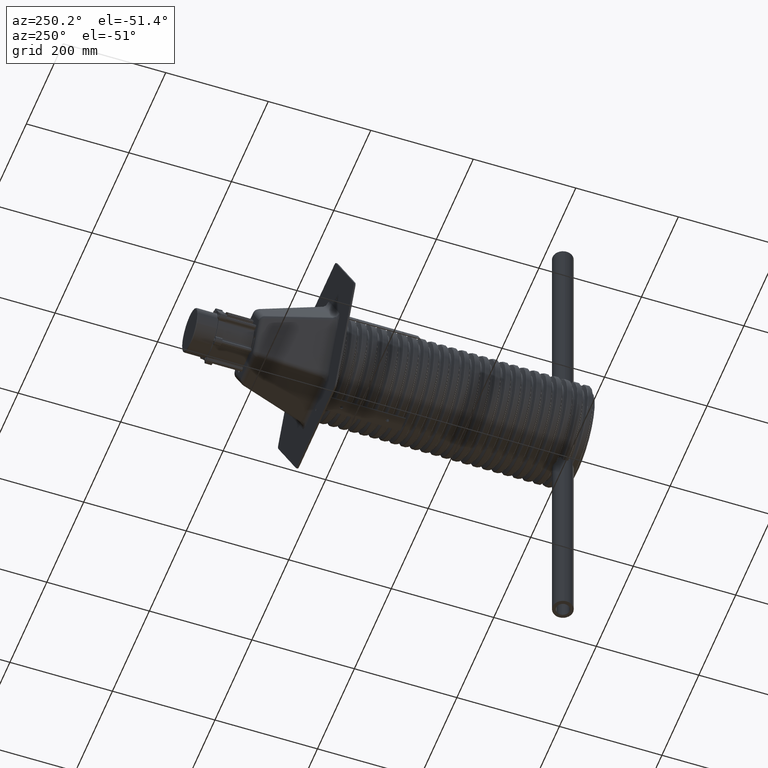
[diagram: clean part render]
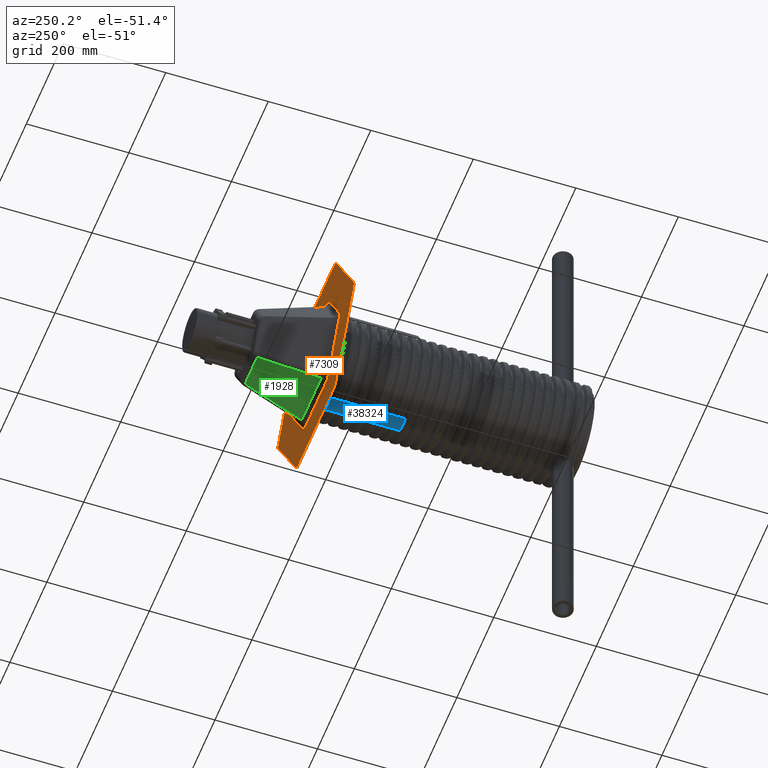
[diagram: same view with three faces highlighted in distinct colors, each labeled with its STEP entity id]
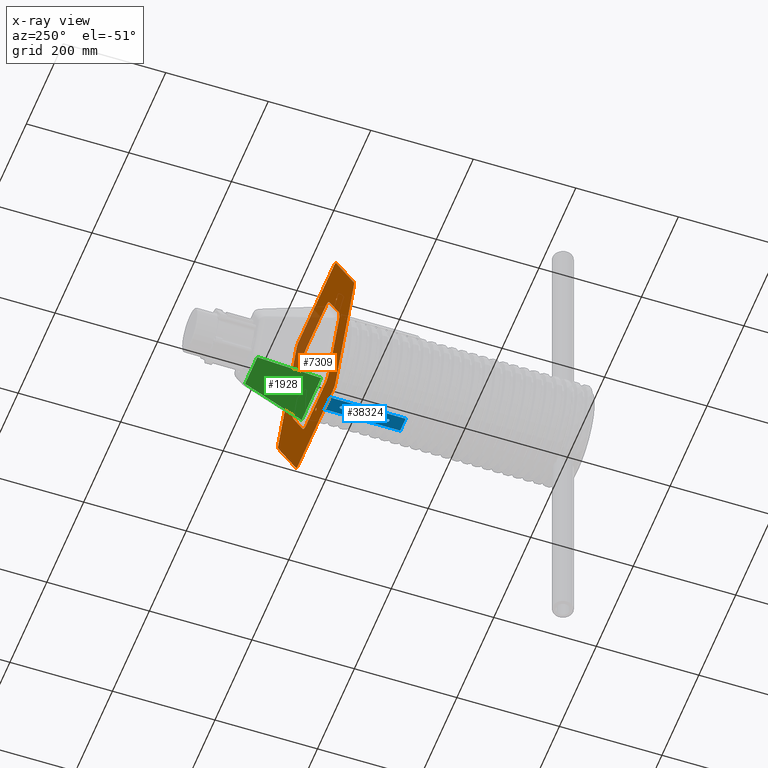
[diagram: x-ray of the same camera — body ghosted, the three highlighted faces saturated]
A machine part, auxiliary view with three faces highlighted in distinct colors.
The next image is the same camera in x-ray (body ghosted, the three faces saturated) — at least one of them is partly hidden behind the body in this view.
Their STEP definitions:

[orange] entity #7309 — the highlighted planar face has unit normal (-0, 1, 0).
#168 = FACE_BOUND ( 'NONE', #15408, .T. ) ;
#639 = EDGE_CURVE ( 'NONE', #44845, #1185, #3897, .T. ) ;
#665 = EDGE_CURVE ( 'NONE', #15430, #28852, #25187, .T. ) ;
#675 = CARTESIAN_POINT ( 'NONE',  ( -126.0606159927933600, -0.9905632959438801500, 3.000000000000000000 ) ) ;
#728 = CARTESIAN_POINT ( 'NONE',  ( 61.19974159824982300, 111.8859771665176800, 3.000000000000000000 ) ) ;
#1010 = CARTESIAN_POINT ( 'NONE',  ( -9.330518732437003100, 124.8735107438205500, 3.000000000000000000 ) ) ;
#1066 = DIRECTION ( 'NONE',  ( 0.8660254037844388200, -0.4999999999999996700, 0.0000000000000000000 ) ) ;
#1185 = VERTEX_POINT ( 'NONE', #11800 ) ;
#1237 = EDGE_CURVE ( 'NONE', #40690, #44837, #24024, .T. ) ;
#1313 = CARTESIAN_POINT ( 'NONE',  ( 103.4783731976789600, 70.51722162468746500, 3.000000000000000000 ) ) ;
#1322 = ORIENTED_EDGE ( 'NONE', *, *, #10440, .T. ) ;
#1336 =( BOUNDED_CURVE ( )  B_SPLINE_CURVE ( 3, ( #44526, #12512, #9154, #34119 ),
 .UNSPECIFIED., .F., .F. ) 
 B_SPLINE_CURVE_WITH_KNOTS ( ( 4, 4 ),
 ( 2.101014484786074800E-031, 0.5014484800342340300 ),
 .UNSPECIFIED. ) 
 CURVE ( )  GEOMETRIC_REPRESENTATION_ITEM ( )  RATIONAL_B_SPLINE_CURVE ( ( 1.000000000000000000, 0.9791553251799449700, 0.9791553251799449700, 1.000000000000000000 ) ) 
 REPRESENTATION_ITEM ( '' )  );
#1345 = CARTESIAN_POINT ( 'NONE',  ( 64.49258023428306800, -110.8974878807649700, 3.000000000000000000 ) ) ;
#1349 = VERTEX_POINT ( 'NONE', #25189 ) ;
#1583 = AXIS2_PLACEMENT_3D ( 'NONE', #35752, #35652, #35612 ) ;
#1652 = CARTESIAN_POINT ( 'NONE',  ( -105.4923940547534800, 69.35442614070194600, 2.999999999999999600 ) ) ;
#1684 = CARTESIAN_POINT ( 'NONE',  ( -109.9916431644735400, -63.50370478961814100, 2.999999999999999100 ) ) ;
#1730 = CARTESIAN_POINT ( 'NONE',  ( -108.1334689171749100, -66.72215699525544600, 2.999999999999999100 ) ) ;
#1785 = CARTESIAN_POINT ( 'NONE',  ( -105.4923940547534200, -69.35442614070200300, 2.999999999999999100 ) ) ;
#1791 = EDGE_LOOP ( 'NONE', ( #6440, #25975 ) ) ;
#1885 = DIRECTION ( 'NONE',  ( 1.000000000000000000, 0.0000000000000000000, -0.0000000000000000000 ) ) ;
#1982 = CARTESIAN_POINT ( 'NONE',  ( 102.2335756172567200, 71.23590584283083200, 3.000000000000000000 ) ) ;
#1996 = PLANE ( 'NONE',  #37613 ) ;
#2188 = VERTEX_POINT ( 'NONE', #26947 ) ;
#2196 = CARTESIAN_POINT ( 'NONE',  ( 0.0000000000000000000, 0.0000000000000000000, 3.000000000000000000 ) ) ;
#2245 = CARTESIAN_POINT ( 'NONE',  ( -102.2335756172568000, -71.23590584283076100, 3.000000000000000000 ) ) ;
#2651 = VERTEX_POINT ( 'NONE', #30161 ) ;
#2677 = DIRECTION ( 'NONE',  ( 0.0000000000000000000, 0.0000000000000000000, 1.000000000000000000 ) ) ;
#2829 = DIRECTION ( 'NONE',  ( 1.000000000000000000, 0.0000000000000000000, 0.0000000000000000000 ) ) ;
#2905 = CARTESIAN_POINT ( 'NONE',  ( 174.0000000000000600, 107.3871500692703600, 3.000000000000000000 ) ) ;
#2992 = DIRECTION ( 'NONE',  ( 0.0000000000000000000, 0.0000000000000000000, 1.000000000000000000 ) ) ;
#3089 = VERTEX_POINT ( 'NONE', #38229 ) ;
#3156 = CARTESIAN_POINT ( 'NONE',  ( -168.0000000000000000, -96.99484522385716900, 3.000000000000000000 ) ) ;
#3241 = ORIENTED_EDGE ( 'NONE', *, *, #3611, .T. ) ;
#3496 = CARTESIAN_POINT ( 'NONE',  ( 180.0000000000000600, -96.99484522385709800, 3.000000000000000000 ) ) ;
#3586 = EDGE_LOOP ( 'NONE', ( #32713, #16912, #9656, #4623, #7550, #3241, #6414, #32980, #35703, #38567, #25666, #45500 ) ) ;
#3611 = EDGE_CURVE ( 'NONE', #12273, #45952, #13545, .T. ) ;
#3803 = VECTOR ( 'NONE', #39108, 1000.000000000000000 ) ;
#3852 = VECTOR ( 'NONE', #44434, 1000.000000000000000 ) ;
#3897 =( BOUNDED_CURVE ( )  B_SPLINE_CURVE ( 3, ( #2245, #1785, #1730, #1684 ),
 .UNSPECIFIED., .F., .T. ) 
 B_SPLINE_CURVE_WITH_KNOTS ( ( 4, 4 ),
 ( 5.781736827145351800, 6.283185307179586200 ),
 .UNSPECIFIED. ) 
 CURVE ( )  GEOMETRIC_REPRESENTATION_ITEM ( )  RATIONAL_B_SPLINE_CURVE ( ( 1.000000000000000000, 0.9791553251799449700, 0.9791553251799449700, 1.000000000000000000 ) ) 
 REPRESENTATION_ITEM ( '' )  );
#3914 = CARTESIAN_POINT ( 'NONE',  ( 112.8088919301159900, 52.91892068284668200, 3.000000000000000000 ) ) ;
#3943 =( BOUNDED_CURVE ( )  B_SPLINE_CURVE ( 3, ( #14396, #14241, #28619, #31295 ),
 .UNSPECIFIED., .F., .T. ) 
 B_SPLINE_CURVE_WITH_KNOTS ( ( 4, 4 ),
 ( 5.781736827145351800, 6.283185307179586200 ),
 .UNSPECIFIED. ) 
 CURVE ( )  GEOMETRIC_REPRESENTATION_ITEM ( )  RATIONAL_B_SPLINE_CURVE ( ( 1.000000000000000000, 0.9791553251799449700, 0.9791553251799449700, 1.000000000000000000 ) ) 
 REPRESENTATION_ITEM ( '' )  );
#4072 = EDGE_CURVE ( 'NONE', #26807, #1349, #13502, .T. ) ;
#4121 = CARTESIAN_POINT ( 'NONE',  ( 10.57531631285921100, -124.1548265256771900, 3.000000000000000000 ) ) ;
#4408 = DIRECTION ( 'NONE',  ( 0.0000000000000000000, 0.0000000000000000000, 1.000000000000000000 ) ) ;
#4544 = EDGE_CURVE ( 'NONE', #13588, #8807, #42905, .T. ) ;
#4566 = EDGE_CURVE ( 'NONE', #19211, #44845, #20758, .T. ) ;
#4623 = ORIENTED_EDGE ( 'NONE', *, *, #1237, .T. ) ;
#4800 = CARTESIAN_POINT ( 'NONE',  ( 7.316497875362693500, 126.0363062278059500, 2.999999999999999600 ) ) ;
#4973 = DIRECTION ( 'NONE',  ( 1.000000000000000000, 0.0000000000000000000, 0.0000000000000000000 ) ) ;
#5375 = DIRECTION ( 'NONE',  ( 1.000000000000000000, 0.0000000000000000000, 0.0000000000000000000 ) ) ;
#5422 = DIRECTION ( 'NONE',  ( 0.0000000000000000000, 0.0000000000000000000, 1.000000000000000000 ) ) ;
#5456 = CARTESIAN_POINT ( 'NONE',  ( -128.5606159927932900, -0.9905632959438803700, 3.000000000000000000 ) ) ;
#5516 = CARTESIAN_POINT ( 'NONE',  ( -10.57531631285927000, -124.1548265256772100, 3.000000000000000000 ) ) ;
#5766 = VERTEX_POINT ( 'NONE', #35913 ) ;
#5840 = CARTESIAN_POINT ( 'NONE',  ( 109.9916431644734000, 63.50370478961828300, 2.999999999999999100 ) ) ;
#6414 = ORIENTED_EDGE ( 'NONE', *, *, #42125, .T. ) ;
#6440 = ORIENTED_EDGE ( 'NONE', *, *, #19188, .F. ) ;
#6960 = CARTESIAN_POINT ( 'NONE',  ( 180.0000000000000600, 103.9230484541326100, 3.000000000000000000 ) ) ;
#7309 = ADVANCED_FACE ( 'NONE', ( #45508, #26706, #36059, #168, #17204 ), #1996, .T. ) ;
#7386 = VERTEX_POINT ( 'NONE', #728 ) ;
#7390 = VERTEX_POINT ( 'NONE', #25981 ) ;
#7550 = ORIENTED_EDGE ( 'NONE', *, *, #41335, .T. ) ;
#7802 = CARTESIAN_POINT ( 'NONE',  ( 3.716348494597223600, -127.0074095792362000, 2.999999999999999600 ) ) ;
#7885 = CARTESIAN_POINT ( 'NONE',  ( -102.2335756172568000, -71.23590584283076100, 3.000000000000000000 ) ) ;
#8264 = VERTEX_POINT ( 'NONE', #17201 ) ;
#8807 = VERTEX_POINT ( 'NONE', #34700 ) ;
#9011 = EDGE_CURVE ( 'NONE', #1185, #36624, #41513, .T. ) ;
#9154 = CARTESIAN_POINT ( 'NONE',  ( -7.316497875362702400, -126.0363062278059500, 2.999999999999999100 ) ) ;
#9631 = ORIENTED_EDGE ( 'NONE', *, *, #12508, .T. ) ;
#9656 = ORIENTED_EDGE ( 'NONE', *, *, #31896, .T. ) ;
#10174 = CIRCLE ( 'NONE', #45628, 12.00000000000000000 ) ;
#10273 = ORIENTED_EDGE ( 'NONE', *, *, #26763, .F. ) ;
#10286 = VERTEX_POINT ( 'NONE', #3496 ) ;
#10296 = CARTESIAN_POINT ( 'NONE',  ( -131.0606159927932000, -0.9905632959438803700, 3.000000000000000000 ) ) ;
#10437 = EDGE_LOOP ( 'NONE', ( #11495, #45925 ) ) ;
#10440 = EDGE_CURVE ( 'NONE', #7390, #15430, #36661, .T. ) ;
#10505 = AXIS2_PLACEMENT_3D ( 'NONE', #1345, #26569, #4973 ) ;
#10557 = ORIENTED_EDGE ( 'NONE', *, *, #30548, .T. ) ;
#10652 = CARTESIAN_POINT ( 'NONE',  ( 61.99258023428314600, -110.8974878807649700, 3.000000000000000000 ) ) ;
#10692 = CARTESIAN_POINT ( 'NONE',  ( -112.8088919301161000, -52.91892068284656900, 3.000000000000000000 ) ) ;
#10729 = CARTESIAN_POINT ( 'NONE',  ( 102.2335756172567200, 71.23590584283083200, 3.000000000000000000 ) ) ;
#11495 = ORIENTED_EDGE ( 'NONE', *, *, #35711, .F. ) ;
#11541 = VERTEX_POINT ( 'NONE', #37102 ) ;
#11579 = CARTESIAN_POINT ( 'NONE',  ( 66.99258023428301100, -110.8974878807649700, 3.000000000000000000 ) ) ;
#11800 = CARTESIAN_POINT ( 'NONE',  ( -109.9916431644735400, -63.50370478961814100, 2.999999999999999100 ) ) ;
#11886 = EDGE_CURVE ( 'NONE', #10286, #40673, #36583, .T. ) ;
#11972 = AXIS2_PLACEMENT_3D ( 'NONE', #43404, #43243, #42937 ) ;
#12008 = DIRECTION ( 'NONE',  ( 0.8660254037844388200, 0.4999999999999997200, -0.0000000000000000000 ) ) ;
#12095 = CARTESIAN_POINT ( 'NONE',  ( -6.000000000000116400, -204.3819952931275200, 3.000000000000000000 ) ) ;
#12263 = VERTEX_POINT ( 'NONE', #18790 ) ;
#12273 = VERTEX_POINT ( 'NONE', #18695 ) ;
#12478 = CARTESIAN_POINT ( 'NONE',  ( -109.9916431644735900, 63.50370478961811200, 2.999999999999998200 ) ) ;
#12508 = EDGE_CURVE ( 'NONE', #8807, #2651, #32110, .T. ) ;
#12512 = CARTESIAN_POINT ( 'NONE',  ( -3.716348494597271100, -127.0074095792362000, 2.999999999999999100 ) ) ;
#12523 = VERTEX_POINT ( 'NONE', #12095 ) ;
#12535 = CIRCLE ( 'NONE', #27570, 12.00000000000000000 ) ;
#12628 = DIRECTION ( 'NONE',  ( 9.472722593022467100E-016, -1.000000000000000000, 0.0000000000000000000 ) ) ;
#12659 = CARTESIAN_POINT ( 'NONE',  ( 109.9916431644734900, -63.50370478961816900, 2.999999999999997300 ) ) ;
#13239 = CIRCLE ( 'NONE', #24671, 2.499999999999932900 ) ;
#13313 = ORIENTED_EDGE ( 'NONE', *, *, #39031, .T. ) ;
#13328 = LINE ( 'NONE', #15505, #22888 ) ;
#13502 = LINE ( 'NONE', #39286, #3803 ) ;
#13545 = CIRCLE ( 'NONE', #22438, 12.00000000000001100 ) ;
#13588 = VERTEX_POINT ( 'NONE', #14398 ) ;
#13747 = DIRECTION ( 'NONE',  ( -0.8660254037844387100, -0.4999999999999998900, 0.0000000000000000000 ) ) ;
#13766 = VERTEX_POINT ( 'NONE', #675 ) ;
#13905 =( BOUNDED_CURVE ( )  B_SPLINE_CURVE ( 3, ( #25923, #19971, #19507, #19351 ),
 .UNSPECIFIED., .F., .T. ) 
 B_SPLINE_CURVE_WITH_KNOTS ( ( 4, 4 ),
 ( 5.781736827145352600, 6.283185307179586200 ),
 .UNSPECIFIED. ) 
 CURVE ( )  GEOMETRIC_REPRESENTATION_ITEM ( )  RATIONAL_B_SPLINE_CURVE ( ( 1.000000000000000000, 0.9791553251799449700, 0.9791553251799449700, 1.000000000000000000 ) ) 
 REPRESENTATION_ITEM ( '' )  );
#13968 = CARTESIAN_POINT ( 'NONE',  ( 9.330518732436996000, -124.8735107438205600, 3.000000000000000000 ) ) ;
#14175 =( BOUNDED_CURVE ( )  B_SPLINE_CURVE ( 3, ( #4121, #25750, #7802, #32809 ),
 .UNSPECIFIED., .F., .F. ) 
 B_SPLINE_CURVE_WITH_KNOTS ( ( 4, 4 ),
 ( 5.781736827145353500, 6.283185307179586200 ),
 .UNSPECIFIED. ) 
 CURVE ( )  GEOMETRIC_REPRESENTATION_ITEM ( )  RATIONAL_B_SPLINE_CURVE ( ( 1.000000000000000000, 0.9791553251799451900, 0.9791553251799451900, 1.000000000000000000 ) ) 
 REPRESENTATION_ITEM ( '' )  );
#14241 = CARTESIAN_POINT ( 'NONE',  ( -7.316497875362673000, 126.0363062278059500, 2.999999999999999100 ) ) ;
#14313 = DIRECTION ( 'NONE',  ( -0.8660254037844386000, 0.5000000000000000000, 0.0000000000000000000 ) ) ;
#14396 = CARTESIAN_POINT ( 'NONE',  ( -10.57531631285924200, 124.1548265256771700, 3.000000000000000000 ) ) ;
#14398 = CARTESIAN_POINT ( 'NONE',  ( 109.9916431644734900, -63.50370478961816900, 2.999999999999997300 ) ) ;
#14402 = CARTESIAN_POINT ( 'NONE',  ( 109.9916431644734000, 63.50370478961828300, 2.999999999999999100 ) ) ;
#14422 = EDGE_CURVE ( 'NONE', #13766, #19411, #22626, .T. ) ;
#15078 = CARTESIAN_POINT ( 'NONE',  ( -180.0000000000000300, 96.99484522385709800, 3.000000000000000000 ) ) ;
#15132 = CARTESIAN_POINT ( 'NONE',  ( 168.0000000000000300, -96.99484522385709800, 3.000000000000000000 ) ) ;
#15246 = VERTEX_POINT ( 'NONE', #2905 ) ;
#15408 = EDGE_LOOP ( 'NONE', ( #39184, #29344, #34462, #18356, #10557, #17272, #9631, #28820, #16350, #41723, #35768, #35057, #22610, #39628, #23701, #13313, #29495, #1322 ) ) ;
#15430 = VERTEX_POINT ( 'NONE', #41701 ) ;
#15505 = CARTESIAN_POINT ( 'NONE',  ( -180.0000000000000300, -103.9230484541326800, 3.000000000000000000 ) ) ;
#15596 = EDGE_CURVE ( 'NONE', #36624, #18846, #32465, .T. ) ;
#15623 = VERTEX_POINT ( 'NONE', #44071 ) ;
#15962 = EDGE_CURVE ( 'NONE', #40673, #15246, #19766, .T. ) ;
#15975 = EDGE_CURVE ( 'NONE', #11541, #5766, #10174, .T. ) ;
#16117 = CARTESIAN_POINT ( 'NONE',  ( 10.57531631285926100, 124.1548265256772100, 3.000000000000000000 ) ) ;
#16118 = CARTESIAN_POINT ( 'NONE',  ( -108.1334689171749800, 66.72215699525540300, 2.999999999999999600 ) ) ;
#16197 =( BOUNDED_CURVE ( )  B_SPLINE_CURVE ( 3, ( #12478, #16118, #1652, #26882 ),
 .UNSPECIFIED., .F., .F. ) 
 B_SPLINE_CURVE_WITH_KNOTS ( ( 4, 4 ),
 ( 0.0000000000000000000, 0.5014484800342330400 ),
 .UNSPECIFIED. ) 
 CURVE ( )  GEOMETRIC_REPRESENTATION_ITEM ( )  RATIONAL_B_SPLINE_CURVE ( ( 1.000000000000000000, 0.9791553251799451900, 0.9791553251799451900, 1.000000000000000000 ) ) 
 REPRESENTATION_ITEM ( '' )  );
#16350 = ORIENTED_EDGE ( 'NONE', *, *, #38558, .T. ) ;
#16581 = CARTESIAN_POINT ( 'NONE',  ( -112.8088919301161000, -52.91892068284656900, 3.000000000000000000 ) ) ;
#16740 = CARTESIAN_POINT ( 'NONE',  ( -112.8088919301161000, -56.68188008710410500, 2.999999999999999100 ) ) ;
#16912 = ORIENTED_EDGE ( 'NONE', *, *, #15975, .T. ) ;
#17201 = CARTESIAN_POINT ( 'NONE',  ( 112.8088919301159900, 52.91892068284668200, 3.000000000000000000 ) ) ;
#17204 = FACE_OUTER_BOUND ( 'NONE', #3586, .T. ) ;
#17272 = ORIENTED_EDGE ( 'NONE', *, *, #4544, .T. ) ;
#17324 = CARTESIAN_POINT ( 'NONE',  ( -112.8088919301161500, 52.91892068284653300, 3.000000000000000000 ) ) ;
#17327 = VECTOR ( 'NONE', #32978, 1000.000000000000000 ) ;
#17500 = CARTESIAN_POINT ( 'NONE',  ( -109.9916431644735400, -63.50370478961814100, 2.999999999999999100 ) ) ;
#18356 = ORIENTED_EDGE ( 'NONE', *, *, #24771, .T. ) ;
#18361 = CARTESIAN_POINT ( 'NONE',  ( 109.9916431644734000, 63.50370478961828300, 2.999999999999999100 ) ) ;
#18695 = CARTESIAN_POINT ( 'NONE',  ( -180.0000000000000300, -96.99484522385709800, 3.000000000000000000 ) ) ;
#18705 = DIRECTION ( 'NONE',  ( 1.000000000000000000, 0.0000000000000000000, 0.0000000000000000000 ) ) ;
#18787 = CARTESIAN_POINT ( 'NONE',  ( 63.69974159824984400, 111.8859771665176800, 3.000000000000000000 ) ) ;
#18790 = CARTESIAN_POINT ( 'NONE',  ( 112.8088919301160900, -52.91892068284654000, 3.000000000000000000 ) ) ;
#18834 = DIRECTION ( 'NONE',  ( 0.0000000000000000000, 0.0000000000000000000, 1.000000000000000000 ) ) ;
#18846 = VERTEX_POINT ( 'NONE', #17324 ) ;
#19188 = EDGE_CURVE ( 'NONE', #19411, #13766, #30031, .T. ) ;
#19211 = VERTEX_POINT ( 'NONE', #5516 ) ;
#19351 = CARTESIAN_POINT ( 'NONE',  ( -109.9916431644735900, 63.50370478961811200, 2.999999999999998200 ) ) ;
#19411 = VERTEX_POINT ( 'NONE', #10296 ) ;
#19507 = CARTESIAN_POINT ( 'NONE',  ( -111.8498174117722400, 60.28525258398084200, 2.999999999999999100 ) ) ;
#19671 = EDGE_CURVE ( 'NONE', #32132, #7390, #3943, .T. ) ;
#19766 = CIRCLE ( 'NONE', #1583, 12.00000000000001100 ) ;
#19847 = CARTESIAN_POINT ( 'NONE',  ( 112.8088919301160900, -54.35628911913328000, 3.000000000000000000 ) ) ;
#19934 = VERTEX_POINT ( 'NONE', #10652 ) ;
#19971 = CARTESIAN_POINT ( 'NONE',  ( -112.8088919301161500, 56.68188008710405500, 2.999999999999999100 ) ) ;
#20035 = CARTESIAN_POINT ( 'NONE',  ( -111.8498174117722100, -60.28525258398088500, 2.999999999999999100 ) ) ;
#20305 = EDGE_CURVE ( 'NONE', #18846, #15623, #13905, .T. ) ;
#20758 = LINE ( 'NONE', #24649, #38447 ) ;
#20767 = EDGE_CURVE ( 'NONE', #2188, #7386, #29863, .T. ) ;
#21084 = DIRECTION ( 'NONE',  ( 0.0000000000000000000, 0.0000000000000000000, 1.000000000000000000 ) ) ;
#21443 = CARTESIAN_POINT ( 'NONE',  ( 108.1334689171748000, 66.72215699525553100, 2.999999999999999100 ) ) ;
#21757 = EDGE_CURVE ( 'NONE', #15246, #11541, #43158, .T. ) ;
#22435 = DIRECTION ( 'NONE',  ( 1.000000000000000000, 0.0000000000000000000, 0.0000000000000000000 ) ) ;
#22438 = AXIS2_PLACEMENT_3D ( 'NONE', #3156, #2992, #2829 ) ;
#22610 = ORIENTED_EDGE ( 'NONE', *, *, #15596, .T. ) ;
#22626 = CIRCLE ( 'NONE', #39898, 2.499999999999919200 ) ;
#22754 = VECTOR ( 'NONE', #13747, 1000.000000000000000 ) ;
#22888 = VECTOR ( 'NONE', #40327, 1000.000000000000100 ) ;
#23206 = CARTESIAN_POINT ( 'NONE',  ( 3.716348494597269300, 127.0074095792361700, 2.999999999999999600 ) ) ;
#23341 = CARTESIAN_POINT ( 'NONE',  ( 112.8088919301160900, -52.91892068284654000, 3.000000000000000000 ) ) ;
#23701 = ORIENTED_EDGE ( 'NONE', *, *, #36387, .T. ) ;
#24024 = CIRCLE ( 'NONE', #11972, 12.00000000000001100 ) ;
#24064 = VECTOR ( 'NONE', #1066, 1000.000000000000100 ) ;
#24318 = CARTESIAN_POINT ( 'NONE',  ( 64.49258023428306800, -110.8974878807649700, 3.000000000000000000 ) ) ;
#24388 = DIRECTION ( 'NONE',  ( -0.8660254037844387100, 0.4999999999999998300, 0.0000000000000000000 ) ) ;
#24567 = EDGE_CURVE ( 'NONE', #28852, #33729, #29590, .T. ) ;
#24649 = CARTESIAN_POINT ( 'NONE',  ( -103.4783731976790500, -70.51722162468739400, 3.000000000000000000 ) ) ;
#24671 = AXIS2_PLACEMENT_3D ( 'NONE', #24318, #2677, #27883 ) ;
#24771 = EDGE_CURVE ( 'NONE', #8264, #12263, #30194, .T. ) ;
#25187 = LINE ( 'NONE', #1313, #24064 ) ;
#25189 = CARTESIAN_POINT ( 'NONE',  ( 174.0000000000000600, -107.3871500692703300, 3.000000000000000000 ) ) ;
#25387 = CARTESIAN_POINT ( 'NONE',  ( 111.8498174117720500, 60.28525258398101300, 2.999999999999999100 ) ) ;
#25550 = CARTESIAN_POINT ( 'NONE',  ( 112.8088919301159800, 56.68188008710421900, 2.999999999999999100 ) ) ;
#25666 = ORIENTED_EDGE ( 'NONE', *, *, #11886, .T. ) ;
#25750 = CARTESIAN_POINT ( 'NONE',  ( 7.316497875362649900, -126.0363062278059500, 2.999999999999999600 ) ) ;
#25763 = CIRCLE ( 'NONE', #10505, 2.499999999999932900 ) ;
#25837 = CARTESIAN_POINT ( 'NONE',  ( 102.2335756172568300, -71.23590584283073200, 3.000000000000000000 ) ) ;
#25923 = CARTESIAN_POINT ( 'NONE',  ( -112.8088919301161500, 52.91892068284653300, 3.000000000000000000 ) ) ;
#25975 = ORIENTED_EDGE ( 'NONE', *, *, #14422, .F. ) ;
#25981 = CARTESIAN_POINT ( 'NONE',  ( 2.385150481294069300E-014, 127.0074095792361700, 2.999999999999999100 ) ) ;
#25988 = CARTESIAN_POINT ( 'NONE',  ( 109.9916431644734900, -63.50370478961816900, 2.999999999999997300 ) ) ;
#26022 = CARTESIAN_POINT ( 'NONE',  ( 108.1334689171748800, -66.72215699525541800, 2.999999999999999100 ) ) ;
#26179 = CARTESIAN_POINT ( 'NONE',  ( 105.4923940547533800, -69.35442614070198900, 2.999999999999999100 ) ) ;
#26569 = DIRECTION ( 'NONE',  ( 0.0000000000000000000, 0.0000000000000000000, 1.000000000000000000 ) ) ;
#26581 = AXIS2_PLACEMENT_3D ( 'NONE', #15132, #39924, #18705 ) ;
#26682 = EDGE_LOOP ( 'NONE', ( #41010, #10273 ) ) ;
#26706 = FACE_BOUND ( 'NONE', #1791, .T. ) ;
#26763 = EDGE_CURVE ( 'NONE', #44849, #19934, #13239, .T. ) ;
#26807 = VERTEX_POINT ( 'NONE', #45816 ) ;
#26828 = LINE ( 'NONE', #33118, #17327 ) ;
#26882 = CARTESIAN_POINT ( 'NONE',  ( -102.2335756172569000, 71.23590584283070400, 3.000000000000000000 ) ) ;
#26947 = CARTESIAN_POINT ( 'NONE',  ( 66.19974159824985800, 111.8859771665176800, 3.000000000000000000 ) ) ;
#27110 = CARTESIAN_POINT ( 'NONE',  ( -174.0000000000000300, -107.3871500692704300, 3.000000000000000000 ) ) ;
#27333 =( BOUNDED_CURVE ( )  B_SPLINE_CURVE ( 3, ( #23341, #44511, #33951, #12659 ),
 .UNSPECIFIED., .F., .F. ) 
 B_SPLINE_CURVE_WITH_KNOTS ( ( 4, 4 ),
 ( 5.781736827145350900, 6.283185307179586200 ),
 .UNSPECIFIED. ) 
 CURVE ( )  GEOMETRIC_REPRESENTATION_ITEM ( )  RATIONAL_B_SPLINE_CURVE ( ( 1.000000000000000000, 0.9791553251799449700, 0.9791553251799449700, 1.000000000000000000 ) ) 
 REPRESENTATION_ITEM ( '' )  );
#27570 = AXIS2_PLACEMENT_3D ( 'NONE', #42283, #21084, #45844 ) ;
#27883 = DIRECTION ( 'NONE',  ( 1.000000000000000000, 0.0000000000000000000, 0.0000000000000000000 ) ) ;
#28082 = DIRECTION ( 'NONE',  ( 0.0000000000000000000, 1.000000000000000000, 0.0000000000000000000 ) ) ;
#28243 = CARTESIAN_POINT ( 'NONE',  ( 180.0000000000000600, -103.9230484541326000, 3.000000000000000000 ) ) ;
#28330 = VECTOR ( 'NONE', #32451, 999.9999999999998900 ) ;
#28619 = CARTESIAN_POINT ( 'NONE',  ( -3.716348494597231600, 127.0074095792361700, 2.999999999999999100 ) ) ;
#28820 = ORIENTED_EDGE ( 'NONE', *, *, #31372, .T. ) ;
#28852 = VERTEX_POINT ( 'NONE', #1982 ) ;
#29091 = VECTOR ( 'NONE', #12628, 1000.000000000000000 ) ;
#29192 = CIRCLE ( 'NONE', #40725, 2.500000000000016000 ) ;
#29344 = ORIENTED_EDGE ( 'NONE', *, *, #24567, .T. ) ;
#29495 = ORIENTED_EDGE ( 'NONE', *, *, #19671, .T. ) ;
#29531 = CARTESIAN_POINT ( 'NONE',  ( 180.0000000000000600, 96.99484522385711200, 3.000000000000000000 ) ) ;
#29590 =( BOUNDED_CURVE ( )  B_SPLINE_CURVE ( 3, ( #10729, #39064, #21443, #14402 ),
 .UNSPECIFIED., .F., .F. ) 
 B_SPLINE_CURVE_WITH_KNOTS ( ( 4, 4 ),
 ( 5.781736827145355300, 6.283185307179586200 ),
 .UNSPECIFIED. ) 
 CURVE ( )  GEOMETRIC_REPRESENTATION_ITEM ( )  RATIONAL_B_SPLINE_CURVE ( ( 1.000000000000000000, 0.9791553251799453000, 0.9791553251799453000, 1.000000000000000000 ) ) 
 REPRESENTATION_ITEM ( '' )  );
#29863 = CIRCLE ( 'NONE', #39292, 2.500000000000016000 ) ;
#30031 = CIRCLE ( 'NONE', #33847, 2.499999999999919200 ) ;
#30064 = CARTESIAN_POINT ( 'NONE',  ( 2.385150481294069300E-014, 127.0074095792361700, 2.999999999999999100 ) ) ;
#30161 = CARTESIAN_POINT ( 'NONE',  ( 10.57531631285921100, -124.1548265256771900, 3.000000000000000000 ) ) ;
#30194 = LINE ( 'NONE', #19847, #29091 ) ;
#30331 = VERTEX_POINT ( 'NONE', #39253 ) ;
#30548 = EDGE_CURVE ( 'NONE', #12263, #13588, #27333, .T. ) ;
#31287 =( BOUNDED_CURVE ( )  B_SPLINE_CURVE ( 3, ( #18361, #25387, #25550, #3914 ),
 .UNSPECIFIED., .F., .F. ) 
 B_SPLINE_CURVE_WITH_KNOTS ( ( 4, 4 ),
 ( 2.365532012695644200E-016, 0.5014484800342345900 ),
 .UNSPECIFIED. ) 
 CURVE ( )  GEOMETRIC_REPRESENTATION_ITEM ( )  RATIONAL_B_SPLINE_CURVE ( ( 1.000000000000000000, 0.9791553251799449700, 0.9791553251799449700, 1.000000000000000000 ) ) 
 REPRESENTATION_ITEM ( '' )  );
#31295 = CARTESIAN_POINT ( 'NONE',  ( 2.385150481294069300E-014, 127.0074095792361700, 2.999999999999999100 ) ) ;
#31372 = EDGE_CURVE ( 'NONE', #2651, #30331, #14175, .T. ) ;
#31896 = EDGE_CURVE ( 'NONE', #5766, #40690, #37697, .T. ) ;
#32110 = LINE ( 'NONE', #13968, #22754 ) ;
#32132 = VERTEX_POINT ( 'NONE', #37383 ) ;
#32451 = DIRECTION ( 'NONE',  ( -0.8660254037844386000, -0.5000000000000002200, 0.0000000000000000000 ) ) ;
#32465 = LINE ( 'NONE', #44586, #3852 ) ;
#32713 = ORIENTED_EDGE ( 'NONE', *, *, #21757, .T. ) ;
#32809 = CARTESIAN_POINT ( 'NONE',  ( -1.865110631197190500E-014, -127.0074095792362000, 2.999999999999999100 ) ) ;
#32978 = DIRECTION ( 'NONE',  ( 0.0000000000000000000, -1.000000000000000000, 0.0000000000000000000 ) ) ;
#32980 = ORIENTED_EDGE ( 'NONE', *, *, #33274, .T. ) ;
#33118 = CARTESIAN_POINT ( 'NONE',  ( -180.0000000000000300, 103.9230484541325800, 3.000000000000000000 ) ) ;
#33274 = EDGE_CURVE ( 'NONE', #12523, #26807, #12535, .T. ) ;
#33729 = VERTEX_POINT ( 'NONE', #5840 ) ;
#33730 = VECTOR ( 'NONE', #14313, 1000.000000000000200 ) ;
#33847 = AXIS2_PLACEMENT_3D ( 'NONE', #5456, #5422, #5375 ) ;
#33856 = VECTOR ( 'NONE', #12008, 1000.000000000000000 ) ;
#33951 = CARTESIAN_POINT ( 'NONE',  ( 111.8498174117721400, -60.28525258398089200, 2.999999999999999100 ) ) ;
#34119 = CARTESIAN_POINT ( 'NONE',  ( -10.57531631285927000, -124.1548265256772100, 3.000000000000000000 ) ) ;
#34462 = ORIENTED_EDGE ( 'NONE', *, *, #38295, .T. ) ;
#34700 = CARTESIAN_POINT ( 'NONE',  ( 102.2335756172568300, -71.23590584283073200, 3.000000000000000000 ) ) ;
#35057 = ORIENTED_EDGE ( 'NONE', *, *, #9011, .T. ) ;
#35342 = DIRECTION ( 'NONE',  ( 1.000000000000000000, 0.0000000000000000000, 0.0000000000000000000 ) ) ;
#35391 = DIRECTION ( 'NONE',  ( 0.0000000000000000000, 0.0000000000000000000, 1.000000000000000000 ) ) ;
#35402 = CARTESIAN_POINT ( 'NONE',  ( 7.806255641895631900E-015, 193.9896904477142500, 3.000000000000000000 ) ) ;
#35612 = DIRECTION ( 'NONE',  ( 1.000000000000000000, 0.0000000000000000000, 0.0000000000000000000 ) ) ;
#35652 = DIRECTION ( 'NONE',  ( 0.0000000000000000000, 0.0000000000000000000, 1.000000000000000000 ) ) ;
#35703 = ORIENTED_EDGE ( 'NONE', *, *, #4072, .T. ) ;
#35711 = EDGE_CURVE ( 'NONE', #7386, #2188, #29192, .T. ) ;
#35752 = CARTESIAN_POINT ( 'NONE',  ( 168.0000000000000300, 96.99484522385711200, 3.000000000000000000 ) ) ;
#35768 = ORIENTED_EDGE ( 'NONE', *, *, #639, .T. ) ;
#35913 = CARTESIAN_POINT ( 'NONE',  ( -6.000000000000008900, 204.3819952931275200, 3.000000000000000000 ) ) ;
#36059 = FACE_BOUND ( 'NONE', #10437, .T. ) ;
#36387 = EDGE_CURVE ( 'NONE', #15623, #3089, #16197, .T. ) ;
#36583 = LINE ( 'NONE', #28243, #46036 ) ;
#36624 = VERTEX_POINT ( 'NONE', #10692 ) ;
#36661 =( BOUNDED_CURVE ( )  B_SPLINE_CURVE ( 3, ( #30064, #23206, #4800, #16117 ),
 .UNSPECIFIED., .F., .F. ) 
 B_SPLINE_CURVE_WITH_KNOTS ( ( 4, 4 ),
 ( 5.252536211965191300E-032, 0.5014484800342331500 ),
 .UNSPECIFIED. ) 
 CURVE ( )  GEOMETRIC_REPRESENTATION_ITEM ( )  RATIONAL_B_SPLINE_CURVE ( ( 1.000000000000000000, 0.9791553251799451900, 0.9791553251799451900, 1.000000000000000000 ) ) 
 REPRESENTATION_ITEM ( '' )  );
#37102 = CARTESIAN_POINT ( 'NONE',  ( 6.000000000000032900, 204.3819952931275200, 3.000000000000000000 ) ) ;
#37383 = CARTESIAN_POINT ( 'NONE',  ( -10.57531631285924200, 124.1548265256771700, 3.000000000000000000 ) ) ;
#37613 = AXIS2_PLACEMENT_3D ( 'NONE', #2196, #4408, #1885 ) ;
#37697 = LINE ( 'NONE', #39425, #28330 ) ;
#38229 = CARTESIAN_POINT ( 'NONE',  ( -102.2335756172569000, 71.23590584283070400, 3.000000000000000000 ) ) ;
#38295 = EDGE_CURVE ( 'NONE', #33729, #8264, #31287, .T. ) ;
#38447 = VECTOR ( 'NONE', #24388, 1000.000000000000000 ) ;
#38558 = EDGE_CURVE ( 'NONE', #30331, #19211, #1336, .T. ) ;
#38567 = ORIENTED_EDGE ( 'NONE', *, *, #44236, .T. ) ;
#39031 = EDGE_CURVE ( 'NONE', #3089, #32132, #43298, .T. ) ;
#39064 = CARTESIAN_POINT ( 'NONE',  ( 105.4923940547532900, 69.35442614070210300, 2.999999999999999100 ) ) ;
#39108 = DIRECTION ( 'NONE',  ( 0.8660254037844386000, 0.5000000000000001100, 0.0000000000000000000 ) ) ;
#39184 = ORIENTED_EDGE ( 'NONE', *, *, #665, .T. ) ;
#39253 = CARTESIAN_POINT ( 'NONE',  ( -1.865110631197190500E-014, -127.0074095792362000, 2.999999999999999100 ) ) ;
#39286 = CARTESIAN_POINT ( 'NONE',  ( -3.642919299551294900E-014, -207.8460969082653100, 3.000000000000000000 ) ) ;
#39292 = AXIS2_PLACEMENT_3D ( 'NONE', #18787, #43561, #22435 ) ;
#39425 = CARTESIAN_POINT ( 'NONE',  ( 1.040834085586084300E-014, 207.8460969082652800, 3.000000000000000000 ) ) ;
#39628 = ORIENTED_EDGE ( 'NONE', *, *, #20305, .T. ) ;
#39898 = AXIS2_PLACEMENT_3D ( 'NONE', #45128, #45100, #45041 ) ;
#39924 = DIRECTION ( 'NONE',  ( 0.0000000000000000000, 0.0000000000000000000, 1.000000000000000000 ) ) ;
#40070 = CARTESIAN_POINT ( 'NONE',  ( 63.69974159824984400, 111.8859771665176800, 3.000000000000000000 ) ) ;
#40170 = CARTESIAN_POINT ( 'NONE',  ( -174.0000000000000900, 107.3871500692703200, 3.000000000000000000 ) ) ;
#40327 = DIRECTION ( 'NONE',  ( 0.8660254037844386000, -0.4999999999999999400, 0.0000000000000000000 ) ) ;
#40673 = VERTEX_POINT ( 'NONE', #29531 ) ;
#40690 = VERTEX_POINT ( 'NONE', #40170 ) ;
#40725 = AXIS2_PLACEMENT_3D ( 'NONE', #40070, #18834, #43599 ) ;
#40753 = EDGE_CURVE ( 'NONE', #19934, #44849, #25763, .T. ) ;
#41010 = ORIENTED_EDGE ( 'NONE', *, *, #40753, .F. ) ;
#41335 = EDGE_CURVE ( 'NONE', #44837, #12273, #26828, .T. ) ;
#41513 =( BOUNDED_CURVE ( )  B_SPLINE_CURVE ( 3, ( #17500, #20035, #16740, #16581 ),
 .UNSPECIFIED., .F., .F. ) 
 B_SPLINE_CURVE_WITH_KNOTS ( ( 4, 4 ),
 ( 2.365532012695645200E-016, 0.5014484800342338100 ),
 .UNSPECIFIED. ) 
 CURVE ( )  GEOMETRIC_REPRESENTATION_ITEM ( )  RATIONAL_B_SPLINE_CURVE ( ( 1.000000000000000000, 0.9791553251799449700, 0.9791553251799449700, 1.000000000000000000 ) ) 
 REPRESENTATION_ITEM ( '' )  );
#41567 = CIRCLE ( 'NONE', #26581, 12.00000000000001100 ) ;
#41701 = CARTESIAN_POINT ( 'NONE',  ( 10.57531631285926100, 124.1548265256772100, 3.000000000000000000 ) ) ;
#41723 = ORIENTED_EDGE ( 'NONE', *, *, #4566, .T. ) ;
#42125 = EDGE_CURVE ( 'NONE', #45952, #12523, #13328, .T. ) ;
#42283 = CARTESIAN_POINT ( 'NONE',  ( -1.821459649775647400E-014, -193.9896904477142800, 3.000000000000000000 ) ) ;
#42905 =( BOUNDED_CURVE ( )  B_SPLINE_CURVE ( 3, ( #25988, #26022, #26179, #25837 ),
 .UNSPECIFIED., .F., .T. ) 
 B_SPLINE_CURVE_WITH_KNOTS ( ( 4, 4 ),
 ( 3.154042683594196100E-016, 0.5014484800342314800 ),
 .UNSPECIFIED. ) 
 CURVE ( )  GEOMETRIC_REPRESENTATION_ITEM ( )  RATIONAL_B_SPLINE_CURVE ( ( 1.000000000000000000, 0.9791553251799453000, 0.9791553251799453000, 1.000000000000000000 ) ) 
 REPRESENTATION_ITEM ( '' )  );
#42937 = DIRECTION ( 'NONE',  ( 1.000000000000000000, 0.0000000000000000000, 0.0000000000000000000 ) ) ;
#43158 = LINE ( 'NONE', #6960, #33730 ) ;
#43243 = DIRECTION ( 'NONE',  ( 0.0000000000000000000, 0.0000000000000000000, 1.000000000000000000 ) ) ;
#43298 = LINE ( 'NONE', #1010, #33856 ) ;
#43404 = CARTESIAN_POINT ( 'NONE',  ( -168.0000000000000000, 96.99484522385709800, 3.000000000000000000 ) ) ;
#43561 = DIRECTION ( 'NONE',  ( 0.0000000000000000000, 0.0000000000000000000, 1.000000000000000000 ) ) ;
#43599 = DIRECTION ( 'NONE',  ( 1.000000000000000000, 0.0000000000000000000, 0.0000000000000000000 ) ) ;
#44071 = CARTESIAN_POINT ( 'NONE',  ( -109.9916431644735900, 63.50370478961811200, 2.999999999999998200 ) ) ;
#44236 = EDGE_CURVE ( 'NONE', #1349, #10286, #41567, .T. ) ;
#44434 = DIRECTION ( 'NONE',  ( -4.736361296511237500E-016, 1.000000000000000000, 0.0000000000000000000 ) ) ;
#44511 = CARTESIAN_POINT ( 'NONE',  ( 112.8088919301160600, -56.68188008710408400, 2.999999999999999100 ) ) ;
#44526 = CARTESIAN_POINT ( 'NONE',  ( -1.865110631197190500E-014, -127.0074095792362000, 2.999999999999999100 ) ) ;
#44586 = CARTESIAN_POINT ( 'NONE',  ( -112.8088919301161500, 54.35628911913325100, 3.000000000000000000 ) ) ;
#44837 = VERTEX_POINT ( 'NONE', #15078 ) ;
#44845 = VERTEX_POINT ( 'NONE', #7885 ) ;
#44849 = VERTEX_POINT ( 'NONE', #11579 ) ;
#45041 = DIRECTION ( 'NONE',  ( 1.000000000000000000, 0.0000000000000000000, 0.0000000000000000000 ) ) ;
#45100 = DIRECTION ( 'NONE',  ( 0.0000000000000000000, 0.0000000000000000000, 1.000000000000000000 ) ) ;
#45128 = CARTESIAN_POINT ( 'NONE',  ( -128.5606159927932900, -0.9905632959438803700, 3.000000000000000000 ) ) ;
#45500 = ORIENTED_EDGE ( 'NONE', *, *, #15962, .T. ) ;
#45508 = FACE_BOUND ( 'NONE', #26682, .T. ) ;
#45628 = AXIS2_PLACEMENT_3D ( 'NONE', #35402, #35391, #35342 ) ;
#45816 = CARTESIAN_POINT ( 'NONE',  ( 5.999999999999984900, -204.3819952931275500, 3.000000000000000000 ) ) ;
#45844 = DIRECTION ( 'NONE',  ( 1.000000000000000000, 0.0000000000000000000, 0.0000000000000000000 ) ) ;
#45925 = ORIENTED_EDGE ( 'NONE', *, *, #20767, .F. ) ;
#45952 = VERTEX_POINT ( 'NONE', #27110 ) ;
#46036 = VECTOR ( 'NONE', #28082, 1000.000000000000000 ) ;

[blue] entity #38324 — the highlighted planar face has unit normal (0, 0, -1).
#281 = CARTESIAN_POINT ( 'NONE',  ( 0.0000000000000000000, 0.0000000000000000000, 0.0000000000000000000 ) ) ;
#290 = CARTESIAN_POINT ( 'NONE',  ( 150.0000000000000000, 0.0000000000000000000, 0.0000000000000000000 ) ) ;
#1471 = VECTOR ( 'NONE', #34659, 1000.000000000000000 ) ;
#2101 = DIRECTION ( 'NONE',  ( 0.0000000000000000000, 0.0000000000000000000, 1.000000000000000000 ) ) ;
#2419 = VERTEX_POINT ( 'NONE', #43912 ) ;
#2456 = AXIS2_PLACEMENT_3D ( 'NONE', #281, #25699, #4078 ) ;
#3872 = DIRECTION ( 'NONE',  ( 1.000000000000000000, 0.0000000000000000000, 0.0000000000000000000 ) ) ;
#3959 = DIRECTION ( 'NONE',  ( 0.0000000000000000000, 0.0000000000000000000, 1.000000000000000000 ) ) ;
#4025 = CARTESIAN_POINT ( 'NONE',  ( 30.00000000000000000, 15.00000000000000000, 0.0000000000000000000 ) ) ;
#4078 = DIRECTION ( 'NONE',  ( -1.000000000000000000, 0.0000000000000000000, -0.0000000000000000000 ) ) ;
#4348 = EDGE_CURVE ( 'NONE', #26447, #2419, #31834, .T. ) ;
#5252 = EDGE_CURVE ( 'NONE', #22923, #44998, #12346, .T. ) ;
#5390 = ORIENTED_EDGE ( 'NONE', *, *, #5252, .F. ) ;
#5651 = CARTESIAN_POINT ( 'NONE',  ( 150.0000000000000000, 30.00000000000000000, 0.0000000000000000000 ) ) ;
#6417 = ORIENTED_EDGE ( 'NONE', *, *, #36912, .F. ) ;
#6418 = VERTEX_POINT ( 'NONE', #40287 ) ;
#7037 = EDGE_LOOP ( 'NONE', ( #5390, #33353, #37592, #6417 ) ) ;
#7073 = FACE_BOUND ( 'NONE', #11739, .T. ) ;
#9863 = CARTESIAN_POINT ( 'NONE',  ( 0.0000000000000000000, 0.0000000000000000000, 0.0000000000000000000 ) ) ;
#9949 = VECTOR ( 'NONE', #35430, 1000.000000000000000 ) ;
#11518 = ORIENTED_EDGE ( 'NONE', *, *, #39190, .T. ) ;
#11739 = EDGE_LOOP ( 'NONE', ( #28469, #41581 ) ) ;
#12050 = DIRECTION ( 'NONE',  ( 0.0000000000000000000, 0.0000000000000000000, 1.000000000000000000 ) ) ;
#12346 = LINE ( 'NONE', #46393, #39580 ) ;
#13806 = LINE ( 'NONE', #36988, #24450 ) ;
#14935 = PLANE ( 'NONE',  #2456 ) ;
#15211 = EDGE_CURVE ( 'NONE', #6418, #34504, #19758, .T. ) ;
#15296 = CARTESIAN_POINT ( 'NONE',  ( 123.2500000000000000, 15.00000000000000000, 0.0000000000000000000 ) ) ;
#15759 = DIRECTION ( 'NONE',  ( -1.000000000000000000, -0.0000000000000000000, -0.0000000000000000000 ) ) ;
#16737 = FACE_OUTER_BOUND ( 'NONE', #7037, .T. ) ;
#18151 = EDGE_CURVE ( 'NONE', #29686, #37427, #27895, .T. ) ;
#18307 = CARTESIAN_POINT ( 'NONE',  ( 26.74999999999999600, 15.00000000000000000, 0.0000000000000000000 ) ) ;
#19758 = CIRCLE ( 'NONE', #41152, 3.250000000000002700 ) ;
#20735 = LINE ( 'NONE', #9863, #1471 ) ;
#22923 = VERTEX_POINT ( 'NONE', #32710 ) ;
#23746 = CARTESIAN_POINT ( 'NONE',  ( 120.0000000000000000, 15.00000000000000000, 0.0000000000000000000 ) ) ;
#23803 = CIRCLE ( 'NONE', #43764, 3.250000000000002700 ) ;
#24450 = VECTOR ( 'NONE', #15759, 1000.000000000000000 ) ;
#25699 = DIRECTION ( 'NONE',  ( 0.0000000000000000000, 0.0000000000000000000, -1.000000000000000000 ) ) ;
#26234 = FACE_BOUND ( 'NONE', #33470, .T. ) ;
#26447 = VERTEX_POINT ( 'NONE', #15296 ) ;
#27320 = DIRECTION ( 'NONE',  ( 1.000000000000000000, 0.0000000000000000000, 0.0000000000000000000 ) ) ;
#27895 = LINE ( 'NONE', #35483, #9949 ) ;
#28363 = CIRCLE ( 'NONE', #28739, 3.250000000000002700 ) ;
#28469 = ORIENTED_EDGE ( 'NONE', *, *, #44909, .T. ) ;
#28739 = AXIS2_PLACEMENT_3D ( 'NONE', #23746, #2101, #27320 ) ;
#29546 = CARTESIAN_POINT ( 'NONE',  ( 120.0000000000000000, 15.00000000000000000, 0.0000000000000000000 ) ) ;
#29583 = DIRECTION ( 'NONE',  ( 0.0000000000000000000, 0.0000000000000000000, 1.000000000000000000 ) ) ;
#29686 = VERTEX_POINT ( 'NONE', #290 ) ;
#30526 = ORIENTED_EDGE ( 'NONE', *, *, #4348, .T. ) ;
#31577 = AXIS2_PLACEMENT_3D ( 'NONE', #29546, #29583, #33187 ) ;
#31834 = CIRCLE ( 'NONE', #31577, 3.250000000000002700 ) ;
#32710 = CARTESIAN_POINT ( 'NONE',  ( 0.0000000000000000000, 30.00000000000000000, 0.0000000000000000000 ) ) ;
#33187 = DIRECTION ( 'NONE',  ( 1.000000000000000000, 0.0000000000000000000, 0.0000000000000000000 ) ) ;
#33347 = CARTESIAN_POINT ( 'NONE',  ( 30.00000000000000000, 15.00000000000000000, 0.0000000000000000000 ) ) ;
#33353 = ORIENTED_EDGE ( 'NONE', *, *, #39545, .F. ) ;
#33470 = EDGE_LOOP ( 'NONE', ( #11518, #30526 ) ) ;
#33502 = CARTESIAN_POINT ( 'NONE',  ( 0.0000000000000000000, 0.0000000000000000000, 0.0000000000000000000 ) ) ;
#34504 = VERTEX_POINT ( 'NONE', #18307 ) ;
#34659 = DIRECTION ( 'NONE',  ( 1.000000000000000000, 0.0000000000000000000, 0.0000000000000000000 ) ) ;
#35430 = DIRECTION ( 'NONE',  ( 0.0000000000000000000, 1.000000000000000000, 0.0000000000000000000 ) ) ;
#35483 = CARTESIAN_POINT ( 'NONE',  ( 150.0000000000000000, 0.0000000000000000000, 0.0000000000000000000 ) ) ;
#36912 = EDGE_CURVE ( 'NONE', #44998, #29686, #20735, .T. ) ;
#36913 = DIRECTION ( 'NONE',  ( 1.000000000000000000, 0.0000000000000000000, 0.0000000000000000000 ) ) ;
#36988 = CARTESIAN_POINT ( 'NONE',  ( 0.0000000000000000000, 30.00000000000000000, 0.0000000000000000000 ) ) ;
#37427 = VERTEX_POINT ( 'NONE', #5651 ) ;
#37592 = ORIENTED_EDGE ( 'NONE', *, *, #18151, .F. ) ;
#38324 = ADVANCED_FACE ( 'NONE', ( #7073, #16737, #26234 ), #14935, .T. ) ;
#39190 = EDGE_CURVE ( 'NONE', #2419, #26447, #28363, .T. ) ;
#39545 = EDGE_CURVE ( 'NONE', #37427, #22923, #13806, .T. ) ;
#39580 = VECTOR ( 'NONE', #44042, 1000.000000000000000 ) ;
#40287 = CARTESIAN_POINT ( 'NONE',  ( 33.25000000000000000, 15.00000000000000000, 0.0000000000000000000 ) ) ;
#41152 = AXIS2_PLACEMENT_3D ( 'NONE', #4025, #3959, #3872 ) ;
#41581 = ORIENTED_EDGE ( 'NONE', *, *, #15211, .T. ) ;
#43764 = AXIS2_PLACEMENT_3D ( 'NONE', #33347, #12050, #36913 ) ;
#43912 = CARTESIAN_POINT ( 'NONE',  ( 116.7499999999999900, 15.00000000000000000, 0.0000000000000000000 ) ) ;
#44042 = DIRECTION ( 'NONE',  ( -0.0000000000000000000, -1.000000000000000000, -0.0000000000000000000 ) ) ;
#44909 = EDGE_CURVE ( 'NONE', #34504, #6418, #23803, .T. ) ;
#44998 = VERTEX_POINT ( 'NONE', #33502 ) ;
#46393 = CARTESIAN_POINT ( 'NONE',  ( 0.0000000000000000000, 0.0000000000000000000, 0.0000000000000000000 ) ) ;

[green] entity #1928 — the highlighted planar face has unit normal (0.0088, 0.2752, -0.9614).
#970 = DIRECTION ( 'NONE',  ( 0.4806961960390562200, 0.8325902345447354600, 0.2751811557035179200 ) ) ;
#1073 = CARTESIAN_POINT ( 'NONE',  ( 4.806961960390578000, 106.4063706376703900, 35.16859414319461800 ) ) ;
#1596 = CARTESIAN_POINT ( 'NONE',  ( 48.34906166406021600, 83.74303130043301700, 27.67808602507797400 ) ) ;
#1928 = ADVANCED_FACE ( 'NONE', ( #5136 ), #36841, .T. ) ;
#2154 = DIRECTION ( 'NONE',  ( 0.8660254037844388200, -0.4999999999999996700, -9.713125171091121400E-019 ) ) ;
#2508 = ORIENTED_EDGE ( 'NONE', *, *, #34318, .T. ) ;
#2635 = CARTESIAN_POINT ( 'NONE',  ( 4.806961960390578000, 75.29408252217595500, 129.3021738684422500 ) ) ;
#2868 = DIRECTION ( 'NONE',  ( -0.8660254037844388200, 0.4999999999999996700, 0.0000000000000000000 ) ) ;
#2949 = EDGE_LOOP ( 'NONE', ( #7974, #43205, #8683, #2508 ) ) ;
#5136 = FACE_OUTER_BOUND ( 'NONE', #2949, .T. ) ;
#5283 = DIRECTION ( 'NONE',  ( 0.2717725502388407300, 0.1569079550387465500, -0.9494838464040530300 ) ) ;
#5391 = CARTESIAN_POINT ( 'NONE',  ( 89.74713911652970900, 57.36613649155901800, 35.16859414319458200 ) ) ;
#5615 = CARTESIAN_POINT ( 'NONE',  ( 33.80503459952076600, 58.55203747799384200, 129.3021738684422500 ) ) ;
#7974 = ORIENTED_EDGE ( 'NONE', *, *, #10257, .T. ) ;
#8517 = DIRECTION ( 'NONE',  ( -5.443957485024331700E-017, -0.3138159100774922700, 0.9494838464040530300 ) ) ;
#8595 = VECTOR ( 'NONE', #21614, 1000.000000000000000 ) ;
#8683 = ORIENTED_EDGE ( 'NONE', *, *, #40145, .T. ) ;
#10257 = EDGE_CURVE ( 'NONE', #21001, #27134, #19575, .T. ) ;
#17067 = VECTOR ( 'NONE', #2154, 1000.000000000000000 ) ;
#17417 = VECTOR ( 'NONE', #8517, 1000.000000000000000 ) ;
#19575 = LINE ( 'NONE', #5391, #29044 ) ;
#20195 = CARTESIAN_POINT ( 'NONE',  ( 62.80310723865088800, 41.80999243381175700, 129.3021738684422500 ) ) ;
#21001 = VERTEX_POINT ( 'NONE', #20195 ) ;
#21614 = DIRECTION ( 'NONE',  ( -0.8660254037844388200, 0.4999999999999996700, 9.713125171091133000E-019 ) ) ;
#26111 = CARTESIAN_POINT ( 'NONE',  ( 4.806961960390579800, 114.1637437111403700, 11.69782613155777700 ) ) ;
#26566 = LINE ( 'NONE', #5615, #17067 ) ;
#27134 = VERTEX_POINT ( 'NONE', #33838 ) ;
#28491 = VERTEX_POINT ( 'NONE', #2635 ) ;
#29044 = VECTOR ( 'NONE', #5283, 1000.000000000000100 ) ;
#30919 = VERTEX_POINT ( 'NONE', #26111 ) ;
#32734 = EDGE_CURVE ( 'NONE', #27134, #30919, #35958, .T. ) ;
#33838 = CARTESIAN_POINT ( 'NONE',  ( 96.46522126478805600, 61.24482302829401400, 11.69782613155778100 ) ) ;
#34318 = EDGE_CURVE ( 'NONE', #28491, #21001, #26566, .T. ) ;
#35958 = LINE ( 'NONE', #42793, #8595 ) ;
#36841 = PLANE ( 'NONE',  #43641 ) ;
#40145 = EDGE_CURVE ( 'NONE', #30919, #28491, #45726, .T. ) ;
#42793 = CARTESIAN_POINT ( 'NONE',  ( 3.562164379968337800, 114.8824279292837400, 11.69782613155778600 ) ) ;
#43205 = ORIENTED_EDGE ( 'NONE', *, *, #32734, .T. ) ;
#43641 = AXIS2_PLACEMENT_3D ( 'NONE', #1596, #970, #2868 ) ;
#45726 = LINE ( 'NONE', #1073, #17417 ) ;